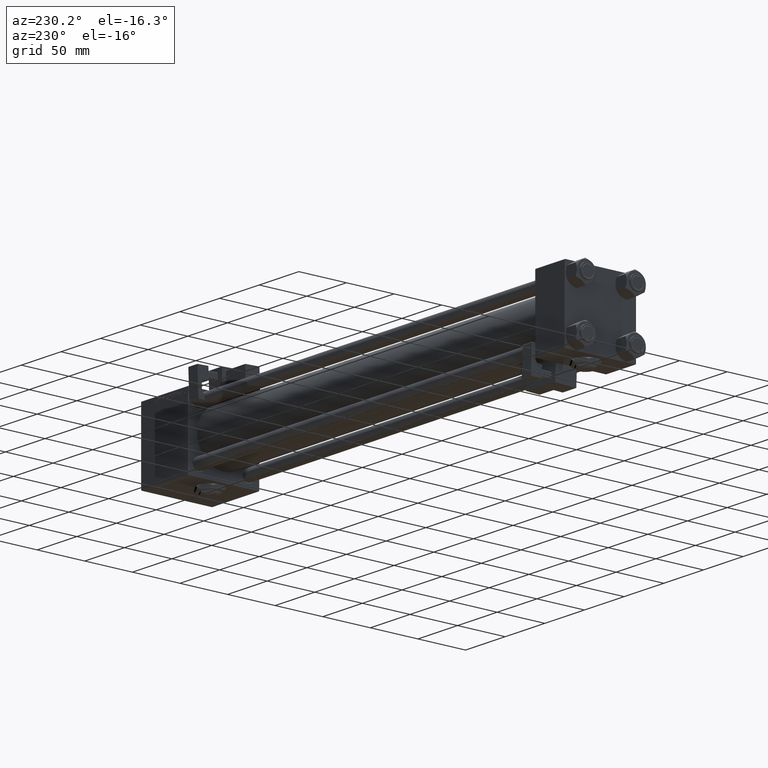
[diagram: clean part render]
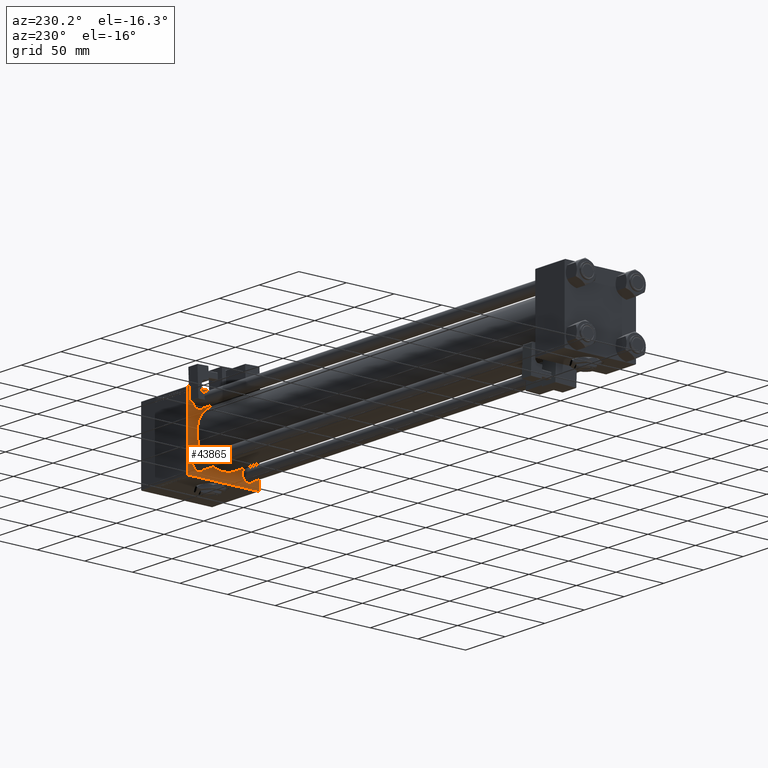
[diagram: same view with one face highlighted and labeled with its STEP entity id]
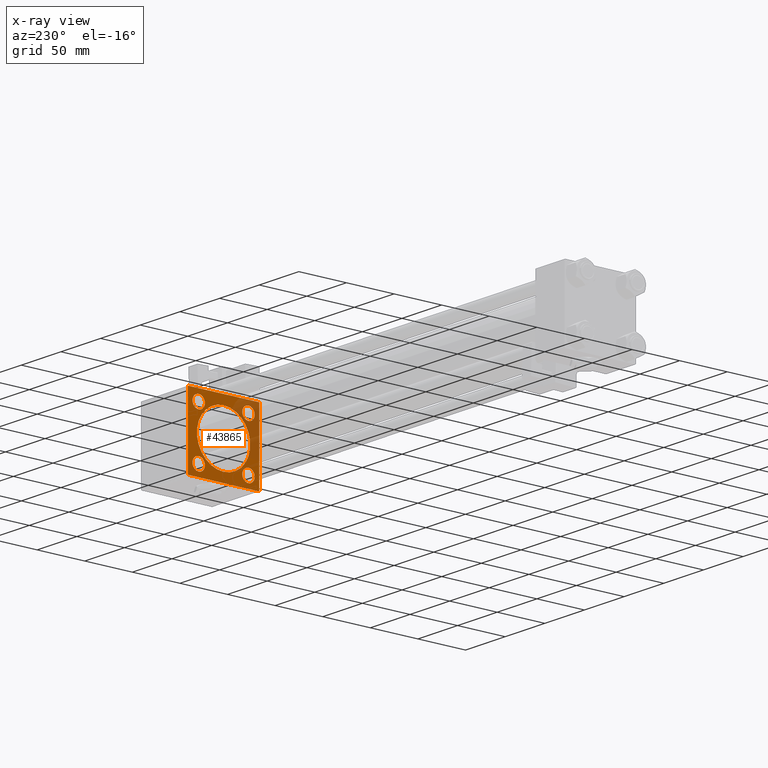
[diagram: x-ray of the same camera — body ghosted, the highlighted face saturated]
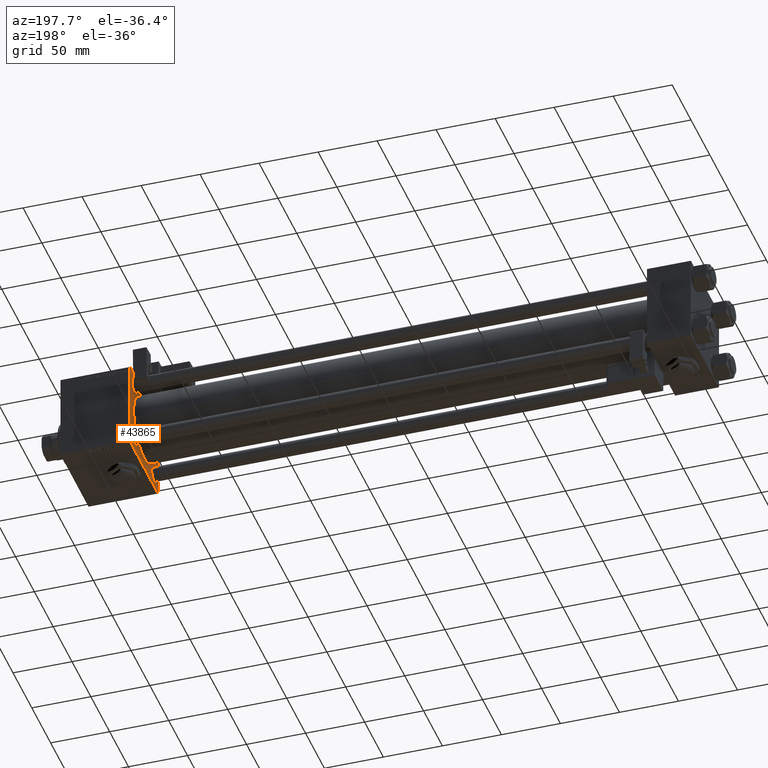
[diagram: same view with one face highlighted and labeled with its STEP entity id]
A machine part, auxiliary view. The second image highlights one B-rep face of the part: STEP entity #43865.
The next image is the same camera in x-ray: the body ghosted, the highlighted face saturated — about 25% of this face is hidden behind the body in this view.
A second angle (auxiliary view) of the same face is appended — the face is thin or edge-on in the first view.
In plain terms, the highlighted planar face has unit normal (-1, 0, 0).
Its self-contained STEP definition (entity closure, byte-faithful):
#25 = DIRECTION ( 'NONE',  ( 0.000000000000000000, 0.000000000000000000, 1.000000000000000000 ) ) ;
#691 = DIRECTION ( 'NONE',  ( 0.000000000000000000, -1.000000000000000000, -1.850371707708594316E-16 ) ) ;
#868 = EDGE_CURVE ( 'NONE', #45228, #27683, #4635, .T. ) ;
#1483 = DIRECTION ( 'NONE',  ( 0.000000000000000000, 0.000000000000000000, -1.000000000000000000 ) ) ;
#1670 = VERTEX_POINT ( 'NONE', #15366 ) ;
#1713 = CARTESIAN_POINT ( 'NONE',  ( 475.0000000000000000, 37.25000000000026290, -37.24999999999974420 ) ) ;
#1746 = PLANE ( 'NONE',  #28622 ) ;
#2902 = EDGE_LOOP ( 'NONE', ( #46430, #9635 ) ) ;
#3718 = DIRECTION ( 'NONE',  ( 0.000000000000000000, 0.000000000000000000, 1.000000000000000000 ) ) ;
#3925 = DIRECTION ( 'NONE',  ( 1.000000000000000000, 0.000000000000000000, 0.000000000000000000 ) ) ;
#4322 = CARTESIAN_POINT ( 'NONE',  ( 475.0000000000000000, -37.50000000000000000, 37.49999999999997868 ) ) ;
#4539 = DIRECTION ( 'NONE',  ( 1.000000000000000000, 0.000000000000000000, -0.000000000000000000 ) ) ;
#4635 = CIRCLE ( 'NONE', #19927, 28.00000000000000000 ) ;
#4747 = CARTESIAN_POINT ( 'NONE',  ( 475.0000000000000000, -37.00000000000000000, 37.49999999999997868 ) ) ;
#4871 = ORIENTED_EDGE ( 'NONE', *, *, #10718, .T. ) ;
#5431 = VECTOR ( 'NONE', #18898, 999.9999999999998863 ) ;
#5436 = CARTESIAN_POINT ( 'NONE',  ( 475.0000000000000000, -2.602085213965210642E-15, 0.000000000000000000 ) ) ;
#5719 = FACE_BOUND ( 'NONE', #2902, .T. ) ;
#5955 = LINE ( 'NONE', #1713, #5431 ) ;
#5969 = EDGE_CURVE ( 'NONE', #19879, #1670, #16001, .T. ) ;
#6029 = DIRECTION ( 'NONE',  ( 0.000000000000000000, -0.7071067811865474617, 0.7071067811865474617 ) ) ;
#6162 = EDGE_CURVE ( 'NONE', #23155, #48692, #23715, .T. ) ;
#6403 = CARTESIAN_POINT ( 'NONE',  ( 475.0000000000000000, -26.14999999999999147, -32.65000000000002700 ) ) ;
#6538 = FACE_BOUND ( 'NONE', #54450, .T. ) ;
#6953 = DIRECTION ( 'NONE',  ( 0.000000000000000000, 0.000000000000000000, 1.000000000000000000 ) ) ;
#7262 = CIRCLE ( 'NONE', #40567, 6.500000000000015987 ) ;
#7691 = VERTEX_POINT ( 'NONE', #50661 ) ;
#7767 = ORIENTED_EDGE ( 'NONE', *, *, #868, .T. ) ;
#8201 = EDGE_CURVE ( 'NONE', #8236, #12003, #27798, .T. ) ;
#8230 = VECTOR ( 'NONE', #51964, 1000.000000000000000 ) ;
#8236 = VERTEX_POINT ( 'NONE', #51911 ) ;
#8656 = CARTESIAN_POINT ( 'NONE',  ( 475.0000000000000000, 37.00000000000000000, -37.50000000000000000 ) ) ;
#8794 = EDGE_LOOP ( 'NONE', ( #18984, #7767 ) ) ;
#8877 = DIRECTION ( 'NONE',  ( -0.000000000000000000, 0.7071067811865474617, 0.7071067811865474617 ) ) ;
#9635 = ORIENTED_EDGE ( 'NONE', *, *, #50403, .T. ) ;
#10234 = DIRECTION ( 'NONE',  ( 0.000000000000000000, 0.000000000000000000, 1.000000000000000000 ) ) ;
#10718 = EDGE_CURVE ( 'NONE', #48692, #31964, #5955, .T. ) ;
#10776 = DIRECTION ( 'NONE',  ( 1.000000000000000000, 0.000000000000000000, -0.000000000000000000 ) ) ;
#10841 = VECTOR ( 'NONE', #691, 1000.000000000000000 ) ;
#10920 = DIRECTION ( 'NONE',  ( 0.000000000000000000, 0.7071067811865474617, -0.7071067811865474617 ) ) ;
#11037 = FACE_BOUND ( 'NONE', #19809, .T. ) ;
#11382 = EDGE_CURVE ( 'NONE', #42097, #52994, #7262, .T. ) ;
#11626 = EDGE_CURVE ( 'NONE', #37884, #44388, #43833, .T. ) ;
#11751 = LINE ( 'NONE', #19945, #24479 ) ;
#12003 = VERTEX_POINT ( 'NONE', #15745 ) ;
#12062 = CARTESIAN_POINT ( 'NONE',  ( 475.0000000000000000, 37.50000000000000000, 37.49999999999999289 ) ) ;
#13255 = CIRCLE ( 'NONE', #44780, 28.00000000000000000 ) ;
#13445 = ORIENTED_EDGE ( 'NONE', *, *, #16343, .T. ) ;
#13475 = EDGE_CURVE ( 'NONE', #7691, #15103, #32126, .T. ) ;
#14035 = ORIENTED_EDGE ( 'NONE', *, *, #11382, .T. ) ;
#14169 = DIRECTION ( 'NONE',  ( 1.000000000000000000, 0.000000000000000000, 0.000000000000000000 ) ) ;
#14234 = CARTESIAN_POINT ( 'NONE',  ( 475.0000000000000000, 26.14999999999999858, 19.64999999999999147 ) ) ;
#15103 = VERTEX_POINT ( 'NONE', #19573 ) ;
#15272 = FACE_OUTER_BOUND ( 'NONE', #45854, .T. ) ;
#15366 = CARTESIAN_POINT ( 'NONE',  ( 475.0000000000000000, 26.14999999999999858, 32.65000000000001990 ) ) ;
#15745 = CARTESIAN_POINT ( 'NONE',  ( 475.0000000000000000, 26.14999999999999858, -32.65000000000001990 ) ) ;
#16001 = CIRCLE ( 'NONE', #43949, 6.500000000000008882 ) ;
#16343 = EDGE_CURVE ( 'NONE', #1670, #19879, #36143, .T. ) ;
#17377 = DIRECTION ( 'NONE',  ( 0.000000000000000000, 0.000000000000000000, 1.000000000000000000 ) ) ;
#17435 = EDGE_CURVE ( 'NONE', #46863, #20604, #54204, .T. ) ;
#17516 = DIRECTION ( 'NONE',  ( 1.000000000000000000, 0.000000000000000000, -0.000000000000000000 ) ) ;
#18898 = DIRECTION ( 'NONE',  ( -0.000000000000000000, -0.7071067811865425767, -0.7071067811865525687 ) ) ;
#18984 = ORIENTED_EDGE ( 'NONE', *, *, #39209, .T. ) ;
#19040 = CIRCLE ( 'NONE', #30758, 6.500000000000015987 ) ;
#19457 = VECTOR ( 'NONE', #6029, 1000.000000000000114 ) ;
#19573 = CARTESIAN_POINT ( 'NONE',  ( 475.0000000000000000, -37.50000000000000711, -37.00000000000006395 ) ) ;
#19603 = CARTESIAN_POINT ( 'NONE',  ( 475.0000000000000000, -26.14999999999999147, 26.15000000000000924 ) ) ;
#19809 = EDGE_LOOP ( 'NONE', ( #13445, #34267 ) ) ;
#19879 = VERTEX_POINT ( 'NONE', #14234 ) ;
#19927 = AXIS2_PLACEMENT_3D ( 'NONE', #24227, #3925, #32991 ) ;
#19945 = CARTESIAN_POINT ( 'NONE',  ( 475.0000000000000000, 37.25000000000000000, 37.25000000000000000 ) ) ;
#20209 = CARTESIAN_POINT ( 'NONE',  ( 475.0000000000000000, -26.14999999999999147, -26.15000000000000924 ) ) ;
#20604 = VERTEX_POINT ( 'NONE', #6403 ) ;
#21186 = CARTESIAN_POINT ( 'NONE',  ( 475.0000000000000000, 26.14999999999999858, -26.15000000000000213 ) ) ;
#21222 = CARTESIAN_POINT ( 'NONE',  ( 475.0000000000000000, 8.269258236473784371E-16, -28.00000000000000000 ) ) ;
#21287 = CARTESIAN_POINT ( 'NONE',  ( 475.0000000000000000, -37.24999999999999289, 37.24999999999999289 ) ) ;
#21604 = CARTESIAN_POINT ( 'NONE',  ( 475.0000000000000000, 26.14999999999999858, 26.15000000000000213 ) ) ;
#22892 = CARTESIAN_POINT ( 'NONE',  ( 475.0000000000000000, 26.14999999999999858, 26.15000000000000213 ) ) ;
#22909 = DIRECTION ( 'NONE',  ( 0.000000000000000000, 0.000000000000000000, 1.000000000000000000 ) ) ;
#23024 = CARTESIAN_POINT ( 'NONE',  ( 475.0000000000000000, -26.14999999999999147, 32.65000000000003411 ) ) ;
#23155 = VERTEX_POINT ( 'NONE', #29264 ) ;
#23241 = ORIENTED_EDGE ( 'NONE', *, *, #37429, .T. ) ;
#23571 = ORIENTED_EDGE ( 'NONE', *, *, #52956, .T. ) ;
#23715 = LINE ( 'NONE', #12062, #35829 ) ;
#23730 = CARTESIAN_POINT ( 'NONE',  ( 475.0000000000000000, 0.000000000000000000, 0.000000000000000000 ) ) ;
#24020 = CARTESIAN_POINT ( 'NONE',  ( 475.0000000000000000, 26.14999999999999858, -26.15000000000000213 ) ) ;
#24227 = CARTESIAN_POINT ( 'NONE',  ( 475.0000000000000000, -2.602085213965210642E-15, 0.000000000000000000 ) ) ;
#24356 = AXIS2_PLACEMENT_3D ( 'NONE', #20209, #53770, #6953 ) ;
#24417 = CARTESIAN_POINT ( 'NONE',  ( 475.0000000000000000, -26.14999999999999147, -19.64999999999999503 ) ) ;
#24479 = VECTOR ( 'NONE', #10920, 1000.000000000000114 ) ;
#24793 = AXIS2_PLACEMENT_3D ( 'NONE', #51920, #17516, #3718 ) ;
#24994 = VECTOR ( 'NONE', #48542, 1000.000000000000000 ) ;
#25307 = EDGE_CURVE ( 'NONE', #52994, #42097, #36534, .T. ) ;
#26295 = ORIENTED_EDGE ( 'NONE', *, *, #8201, .T. ) ;
#26810 = CARTESIAN_POINT ( 'NONE',  ( 475.0000000000000000, -2.602085213965210642E-15, 28.00000000000000000 ) ) ;
#27683 = VERTEX_POINT ( 'NONE', #26810 ) ;
#27798 = CIRCLE ( 'NONE', #31432, 6.500000000000015987 ) ;
#27901 = CARTESIAN_POINT ( 'NONE',  ( 475.0000000000000000, -26.14999999999999147, -26.15000000000000924 ) ) ;
#28183 = DIRECTION ( 'NONE',  ( 0.000000000000000000, 0.000000000000000000, 1.000000000000000000 ) ) ;
#28622 = AXIS2_PLACEMENT_3D ( 'NONE', #23730, #53359, #22909 ) ;
#28936 = VECTOR ( 'NONE', #8877, 1000.000000000000114 ) ;
#29264 = CARTESIAN_POINT ( 'NONE',  ( 475.0000000000000000, 37.50000000000000000, 36.99999999999999289 ) ) ;
#29353 = ORIENTED_EDGE ( 'NONE', *, *, #51886, .T. ) ;
#30758 = AXIS2_PLACEMENT_3D ( 'NONE', #24020, #10776, #10234 ) ;
#31061 = LINE ( 'NONE', #47995, #24994 ) ;
#31432 = AXIS2_PLACEMENT_3D ( 'NONE', #21186, #4539, #25 ) ;
#31693 = ORIENTED_EDGE ( 'NONE', *, *, #44620, .T. ) ;
#31695 = CARTESIAN_POINT ( 'NONE',  ( 475.0000000000000000, 37.50000000000000000, 37.49999999999999289 ) ) ;
#31964 = VERTEX_POINT ( 'NONE', #8656 ) ;
#32126 = LINE ( 'NONE', #4322, #8230 ) ;
#32991 = DIRECTION ( 'NONE',  ( 0.000000000000000000, 0.000000000000000000, -1.000000000000000000 ) ) ;
#33437 = ORIENTED_EDGE ( 'NONE', *, *, #13475, .F. ) ;
#34267 = ORIENTED_EDGE ( 'NONE', *, *, #5969, .T. ) ;
#35138 = DIRECTION ( 'NONE',  ( 1.000000000000000000, 0.000000000000000000, -0.000000000000000000 ) ) ;
#35829 = VECTOR ( 'NONE', #42799, 1000.000000000000000 ) ;
#36143 = CIRCLE ( 'NONE', #41533, 6.500000000000008882 ) ;
#36485 = LINE ( 'NONE', #45207, #19457 ) ;
#36534 = CIRCLE ( 'NONE', #24793, 6.500000000000015987 ) ;
#36823 = DIRECTION ( 'NONE',  ( 0.000000000000000000, 0.000000000000000000, 1.000000000000000000 ) ) ;
#37429 = EDGE_CURVE ( 'NONE', #49322, #15103, #36485, .T. ) ;
#37657 = DIRECTION ( 'NONE',  ( 1.000000000000000000, 0.000000000000000000, -0.000000000000000000 ) ) ;
#37884 = VERTEX_POINT ( 'NONE', #44523 ) ;
#39209 = EDGE_CURVE ( 'NONE', #27683, #45228, #13255, .T. ) ;
#39539 = DIRECTION ( 'NONE',  ( 0.000000000000000000, 0.000000000000000000, 1.000000000000000000 ) ) ;
#39965 = ORIENTED_EDGE ( 'NONE', *, *, #11626, .F. ) ;
#40080 = EDGE_LOOP ( 'NONE', ( #14035, #44665 ) ) ;
#40104 = DIRECTION ( 'NONE',  ( 1.000000000000000000, 0.000000000000000000, -0.000000000000000000 ) ) ;
#40567 = AXIS2_PLACEMENT_3D ( 'NONE', #19603, #37657, #36823 ) ;
#41533 = AXIS2_PLACEMENT_3D ( 'NONE', #21604, #35138, #17377 ) ;
#41604 = CARTESIAN_POINT ( 'NONE',  ( 475.0000000000000000, 37.50000000000000000, -36.99999999999999289 ) ) ;
#42097 = VERTEX_POINT ( 'NONE', #23024 ) ;
#42799 = DIRECTION ( 'NONE',  ( 0.000000000000000000, 0.000000000000000000, -1.000000000000000000 ) ) ;
#43047 = CARTESIAN_POINT ( 'NONE',  ( 475.0000000000000000, -26.14999999999999147, 19.64999999999999147 ) ) ;
#43393 = CARTESIAN_POINT ( 'NONE',  ( 475.0000000000000000, -37.00000000000007105, -37.50000000000000000 ) ) ;
#43833 = LINE ( 'NONE', #31695, #10841 ) ;
#43865 = ADVANCED_FACE ( 'NONE', ( #48853, #11037, #6538, #5719, #53077, #15272 ), #1746, .T. ) ;
#43949 = AXIS2_PLACEMENT_3D ( 'NONE', #22892, #40104, #39539 ) ;
#44388 = VERTEX_POINT ( 'NONE', #4747 ) ;
#44523 = CARTESIAN_POINT ( 'NONE',  ( 475.0000000000000000, 37.00000000000000000, 37.49999999999999289 ) ) ;
#44620 = EDGE_CURVE ( 'NONE', #31964, #49322, #31061, .T. ) ;
#44665 = ORIENTED_EDGE ( 'NONE', *, *, #25307, .T. ) ;
#44780 = AXIS2_PLACEMENT_3D ( 'NONE', #5436, #14169, #1483 ) ;
#45088 = ORIENTED_EDGE ( 'NONE', *, *, #6162, .T. ) ;
#45182 = AXIS2_PLACEMENT_3D ( 'NONE', #27901, #53577, #28183 ) ;
#45207 = CARTESIAN_POINT ( 'NONE',  ( 475.0000000000000000, -37.25000000000003553, -37.25000000000003553 ) ) ;
#45228 = VERTEX_POINT ( 'NONE', #21222 ) ;
#45854 = EDGE_LOOP ( 'NONE', ( #31693, #23241, #33437, #48489, #39965, #23571, #45088, #4871 ) ) ;
#46430 = ORIENTED_EDGE ( 'NONE', *, *, #17435, .T. ) ;
#46863 = VERTEX_POINT ( 'NONE', #24417 ) ;
#47995 = CARTESIAN_POINT ( 'NONE',  ( 475.0000000000000000, 37.50000000000000000, -37.50000000000000000 ) ) ;
#48489 = ORIENTED_EDGE ( 'NONE', *, *, #55124, .T. ) ;
#48542 = DIRECTION ( 'NONE',  ( 0.000000000000000000, -1.000000000000000000, 0.000000000000000000 ) ) ;
#48692 = VERTEX_POINT ( 'NONE', #41604 ) ;
#48853 = FACE_BOUND ( 'NONE', #40080, .T. ) ;
#49322 = VERTEX_POINT ( 'NONE', #43393 ) ;
#50403 = EDGE_CURVE ( 'NONE', #20604, #46863, #54067, .T. ) ;
#50661 = CARTESIAN_POINT ( 'NONE',  ( 475.0000000000000000, -37.50000000000000000, 36.99999999999997868 ) ) ;
#51886 = EDGE_CURVE ( 'NONE', #12003, #8236, #19040, .T. ) ;
#51911 = CARTESIAN_POINT ( 'NONE',  ( 475.0000000000000000, 26.14999999999999858, -19.64999999999998792 ) ) ;
#51920 = CARTESIAN_POINT ( 'NONE',  ( 475.0000000000000000, -26.14999999999999147, 26.15000000000000924 ) ) ;
#51964 = DIRECTION ( 'NONE',  ( 0.000000000000000000, -9.251858538542972814E-17, -1.000000000000000000 ) ) ;
#52018 = LINE ( 'NONE', #21287, #28936 ) ;
#52956 = EDGE_CURVE ( 'NONE', #37884, #23155, #11751, .T. ) ;
#52994 = VERTEX_POINT ( 'NONE', #43047 ) ;
#53077 = FACE_BOUND ( 'NONE', #8794, .T. ) ;
#53359 = DIRECTION ( 'NONE',  ( -1.000000000000000000, -0.000000000000000000, 0.000000000000000000 ) ) ;
#53577 = DIRECTION ( 'NONE',  ( 1.000000000000000000, 0.000000000000000000, -0.000000000000000000 ) ) ;
#53770 = DIRECTION ( 'NONE',  ( 1.000000000000000000, 0.000000000000000000, -0.000000000000000000 ) ) ;
#54067 = CIRCLE ( 'NONE', #24356, 6.500000000000015987 ) ;
#54204 = CIRCLE ( 'NONE', #45182, 6.500000000000015987 ) ;
#54450 = EDGE_LOOP ( 'NONE', ( #26295, #29353 ) ) ;
#55124 = EDGE_CURVE ( 'NONE', #7691, #44388, #52018, .T. ) ;